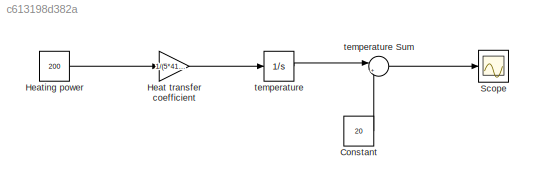
MODEL slx_c613198d382a
KIND model
CONFIG AbsTol = auto
CONFIG EnableMultiTasking = off
CONFIG FixedStep = auto
CONFIG MaxStep = auto
CONFIG MinStep = auto
CONFIG RelTol = 1e-3
CONFIG SampleTimeConstraint = Unconstrained
CONFIG SolverName = VariableStepAuto
CONFIG StartTime = 0.0
CONFIG StopTime = 1000
BLOCK [Constant] Constant
  Value = 20
BLOCK [Gain] Heat transfer coefficient
  Gain = 1/(5*4186)
BLOCK [Constant] Heating power
  Value = 200
BLOCK [Scope] Scope
  Floating = off
  NumInputPorts = 1
  ScopeSpecificationString = Simulink.scopes.TimeScopeBlockCfg('CurrentConfiguration', extmgr.ConfigurationSet(extmgr.Configuration('Core','General UI',true),extmgr.Configuration('Core','Source UI',true),extmgr.Configuration('Sources','WiredSimulink',true),extmgr.Configuration('Visuals','Time Domain',true,'SerializedDisplays',{struct('MinYLimReal','38.80554','MaxYLimReal','50.75012','YLabelReal','','MinYLimMag','38.80554','Ma...<+1470ch>
BLOCK [Integrator] temperature
  InitialCondition = 20
BLOCK [Sum] temperature Sum
  Inputs = |++
LINE Constant:1 -> temperature Sum:2
LINE Heat transfer coefficient:1 -> temperature:1
LINE Heating power:1 -> Heat transfer coefficient:1
LINE temperature Sum:1 -> Scope:1
LINE temperature:1 -> temperature Sum:1
